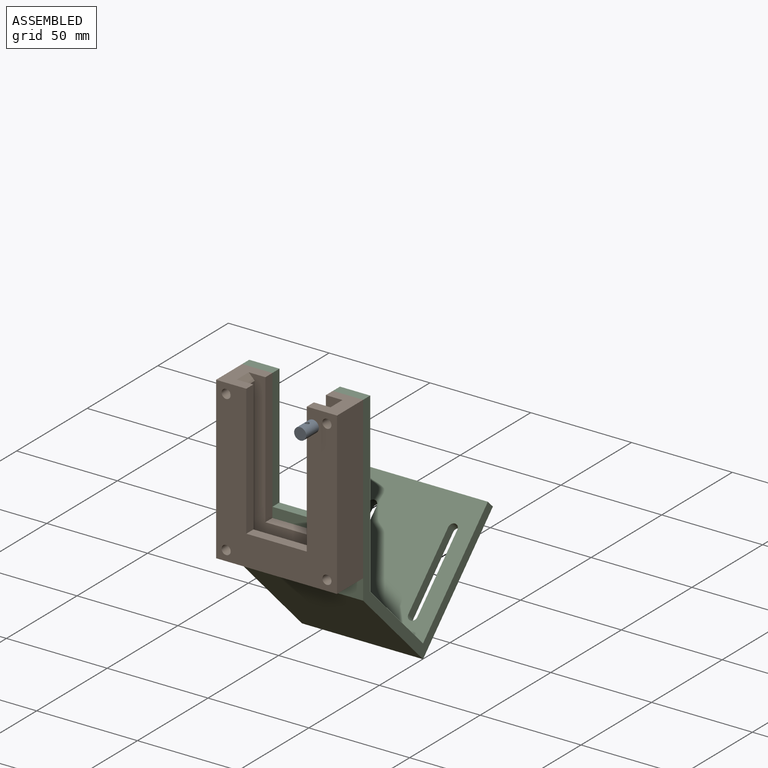
[diagram: assembled view]
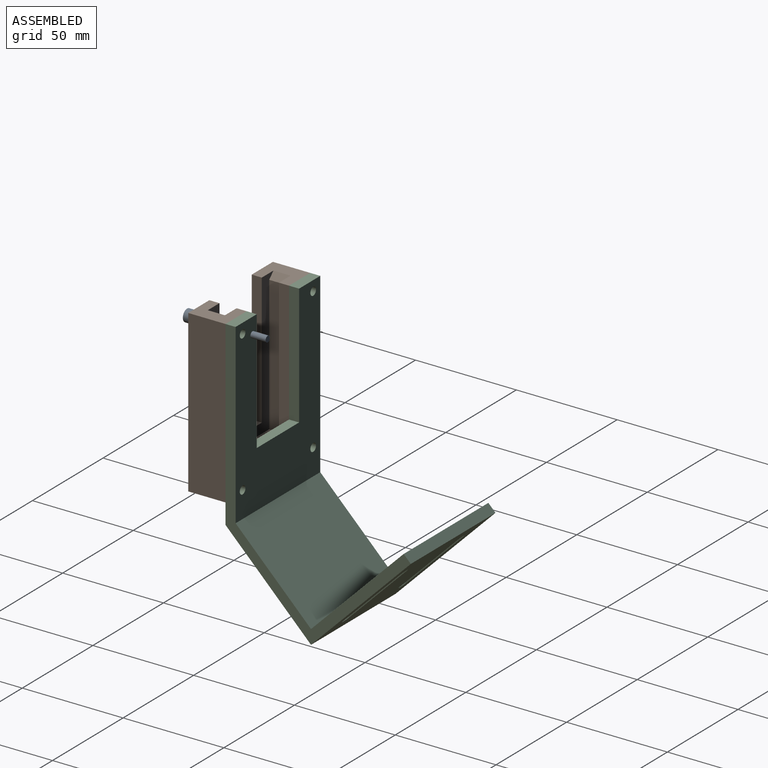
[diagram: assembled view, second angle]
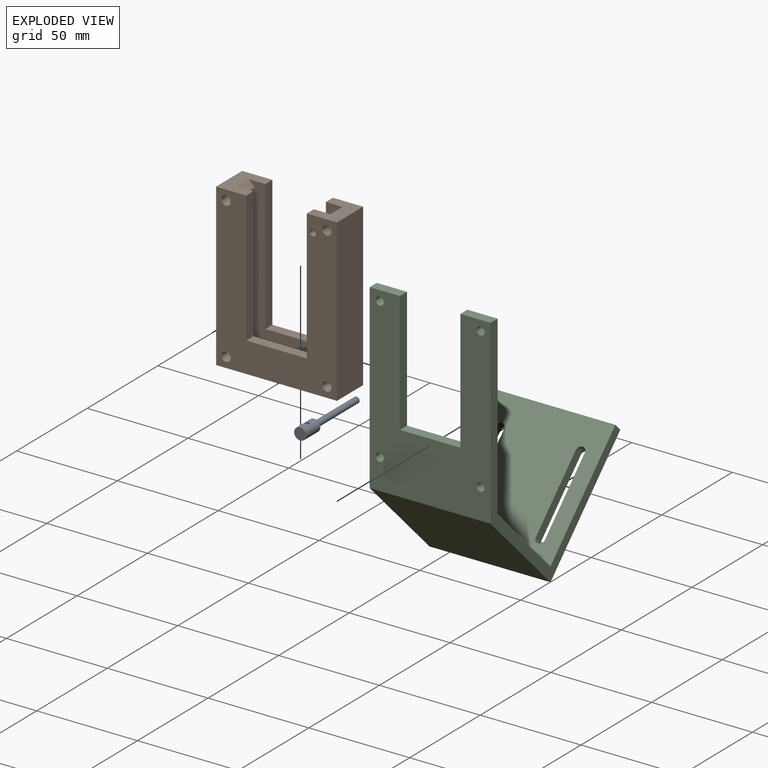
[diagram: exploded view]
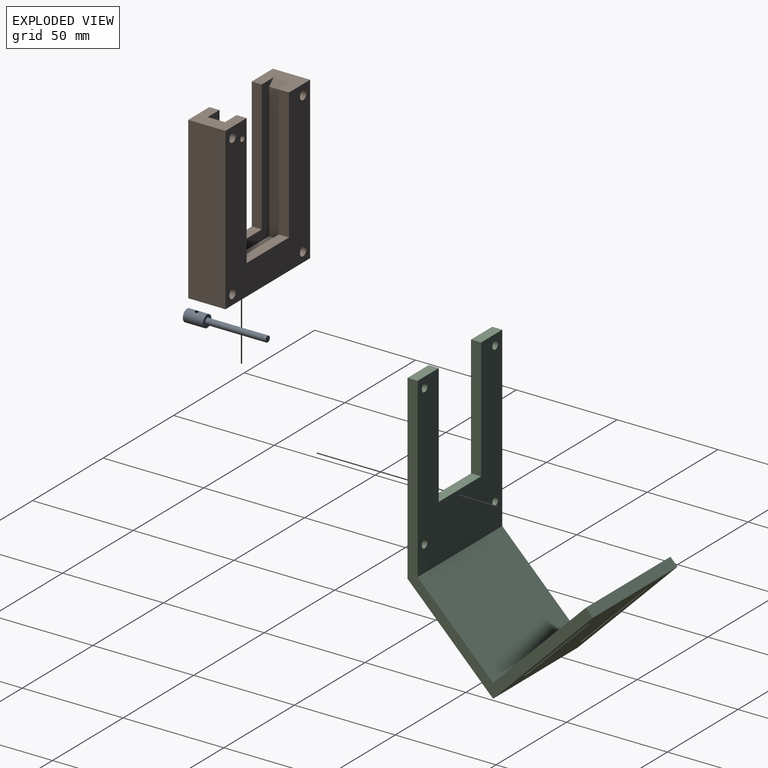
[diagram: exploded view, second angle]
ASSEMBLY  parts=3 mates=2
PART A: 6 faces, bbox 6x40x6 mm
  f0: cylinder r=1.5mm len=30mm, axis (0,1,0), area 282.7mm2, adj f1,f4
  f1: plane 3x3mm, normal (0,1,0), area 7.1mm2, adj f0
  f2: cylinder r=3mm len=10mm, axis (0,1,0), area 182.1mm2, adj f3,f4,f5
  f3: plane 6x6mm, normal (0,-1,0), area 28.3mm2, adj f2
  f4: plane 6x6mm, normal (0,1,0), area 21.2mm2, adj f0,f2
  f5: cylinder r=1mm len=6mm, axis (0,0,1), area 36.6mm2, adj f2
PART B: 26 faces, bbox 60x18.5x80 mm
  f0: plane 18.5x15mm, normal (0,0,1), area 207.4mm2, adj f1,f2,f3,f6,f14,f18,f21,f24
  f1: plane 70x46.5mm, normal (0,-1,0), area 886.9mm2, adj f0,f4,f5,f6,f7,f15,f16,f17
  f2: plane 80x60mm, normal (0,1,0), area 2779.3mm2, adj f0,f4,f5,f6,f7,f8,f9,f10
  f3: plane 80x60mm, normal (0,-1,0), area 2779.3mm2, adj f0,f4,f8,f9,f10,f11,f12,f13
  f4: plane 18.5x15mm, normal (0,0,1), area 207.4mm2, adj f1,f2,f3,f5,f8,f18,f19,f25
  f5: plane 65x5mm, normal (1,0,0), area 325mm2, adj f1,f2,f4,f7
  f6: plane 65x5mm, normal (-1,0,0), area 325mm2, adj f0,f1,f2,f7
  f7: plane 30x5mm, normal (0,0,1), area 150mm2, adj f1,f2,f5,f6
  f8: plane 80x18.5mm, normal (-1,0,0), area 1480mm2, adj f2,f3,f4,f9
  f9: plane 60x18.5mm, normal (0,0,-1), area 1110mm2, adj f2,f3,f8,f14
  f10: cylinder r=2.25mm len=18.5mm, axis (0,1,0), area 261.5mm2, adj f2,f3
  f11: cylinder r=2.25mm len=18.5mm, axis (0,1,0), area 261.5mm2, adj f2,f3
  f12: cylinder r=2.25mm len=18.5mm, axis (0,1,0), area 261.5mm2, adj f2,f3
  f13: cylinder r=2.25mm len=18.5mm, axis (0,1,0), area 261.5mm2, adj f2,f3
  f14: plane 80x18.5mm, normal (1,0,0), area 1480mm2, adj f0,f2,f3,f9
  f15: plane 67x8.5mm, normal (1,0,0), area 569.5mm2, adj f1,f16,f18,f25
  f16: plane 40.5x8.5mm, normal (0,0,1), area 344.3mm2, adj f1,f15,f17,f18
  f17: plane 67x8.5mm, normal (-1,0,0), area 569.5mm2, adj f1,f16,f18,f24
  f18: plane 70x46.5mm, normal (0,1,0), area 886.9mm2, adj f0,f4,f15,f16,f17,f19,f20,f21
  f19: plane 65x5mm, normal (1,0,0), area 325mm2, adj f3,f4,f18,f20
  f20: plane 30x5mm, normal (0,0,1), area 150mm2, adj f3,f18,f19,f21
  f21: plane 65x5mm, normal (-1,0,0), area 325mm2, adj f0,f3,f18,f20
  f22: cylinder r=1.5mm len=5mm, axis (0,-1,0), area 47.1mm2, adj f3,f18
  f23: cylinder r=1.5mm len=5mm, axis (0,-1,0), area 47.1mm2, adj f1,f2
  f24: plane 8.5x3mm, normal (-0.71,0,0.71), area 36.1mm2, adj f0,f1,f17,f18
  f25: plane 8.5x3mm, normal (0.71,0,0.71), area 36.1mm2, adj f1,f4,f15,f18
PART C: 26 faces, bbox 60x70x123.7 mm
  f0: plane 15x3.54mm, normal (0,0.71,0.71), area 75mm2, adj f4,f8,f9,f14
  f1: plane 70x60mm, normal (0,0,-1), area 3808.2mm2, adj f5,f6,f9,f10,f18,f19,f20,f21
  f2: plane 65x60mm, normal (0,0,1), area 3508.2mm2, adj f6,f7,f9,f10,f18,f19,f20,f21
  f3: plane 15x3.54mm, normal (0,0.71,0.71), area 75mm2, adj f4,f8,f10,f12
  f4: plane 63.69x63.69mm, normal (0,-0.71,0.71), area 3554mm2, adj f0,f3,f5,f9,f10,f11,f12,f13
  f5: plane 60x60mm, normal (0,-1,0), area 3600mm2, adj f1,f4,f9,f10
  f6: plane 60x5mm, normal (0,1,0), area 300mm2, adj f1,f2,f9,f10
  f7: plane 60x52.93mm, normal (0,1,0), area 3175.7mm2, adj f2,f8,f9,f10
  f8: plane 62.23x62.23mm, normal (0,0.71,-0.71), area 3429.7mm2, adj f0,f3,f7,f9,f10,f11,f12,f13
  f9: plane 123.69x70mm, normal (1,0,0), area 1065mm2, adj f0,f1,f2,f4,f5,f6,f7,f8
  f10: plane 123.69x70mm, normal (-1,0,0), area 1065mm2, adj f1,f2,f3,f4,f5,f6,f7,f8
  f11: cylinder r=2mm len=6.36mm, axis (0,-0.71,0.71), area 62.8mm2, adj f4,f8
  f12: plane 45.96x45.96mm, normal (1,0,0), area 300mm2, adj f3,f4,f8,f13
  f13: plane 30x3.54mm, normal (0,0.71,0.71), area 150mm2, adj f4,f8,f12,f14
  f14: plane 45.96x45.96mm, normal (-1,0,0), area 300mm2, adj f0,f4,f8,f13
  f15: cylinder r=2mm len=6.36mm, axis (0,-0.71,0.71), area 62.8mm2, adj f4,f8
  f16: cylinder r=2mm len=6.36mm, axis (0,-0.71,0.71), area 62.8mm2, adj f4,f8
  f17: cylinder r=2mm len=6.36mm, axis (0,-0.71,0.71), area 62.8mm2, adj f4,f8
  f18: plane 40x5mm, normal (1,0,0), area 200mm2, adj f1,f2,f19,f21
  f19: cylinder r=2.25mm len=5mm, axis (0,0,-1), area 35.3mm2, adj f1,f2,f18,f20
  f20: plane 40x5mm, normal (-1,0,0), area 200mm2, adj f1,f2,f19,f21
  f21: cylinder r=2.25mm len=5mm, axis (0,0,-1), area 35.3mm2, adj f1,f2,f18,f20
  f22: plane 40x5mm, normal (-1,0,0), area 200mm2, adj f1,f2,f23,f25
  f23: cylinder r=2.25mm len=5mm, axis (0,0,-1), area 35.3mm2, adj f1,f2,f22,f24
  f24: plane 40x5mm, normal (1,0,0), area 200mm2, adj f1,f2,f23,f25
  f25: cylinder r=2.25mm len=5mm, axis (0,0,-1), area 35.3mm2, adj f1,f2,f22,f24
PLACE A t=(-8.39,45.87,95.85)mm
PLACE B t=(-26.39,33.33,63.85)mm fixed
PLACE C rot(axis=(1,0,0),45deg) t=(-56.39,75.76,-28.65)mm
MATE parallel B.f10 <-> C.f11  axis (0,1,0) through (-51.39,33.33,98.85)mm
MATE slider A.f0 <-> B.f22  axis (0,1,0) through (-8.39,30.87,95.85)mm
